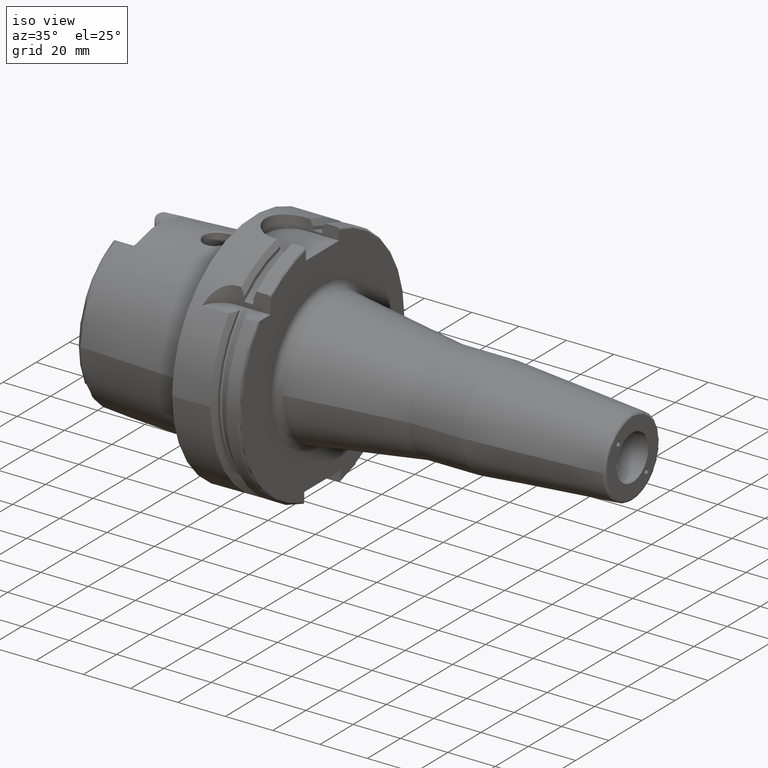
[diagram: clean part render]
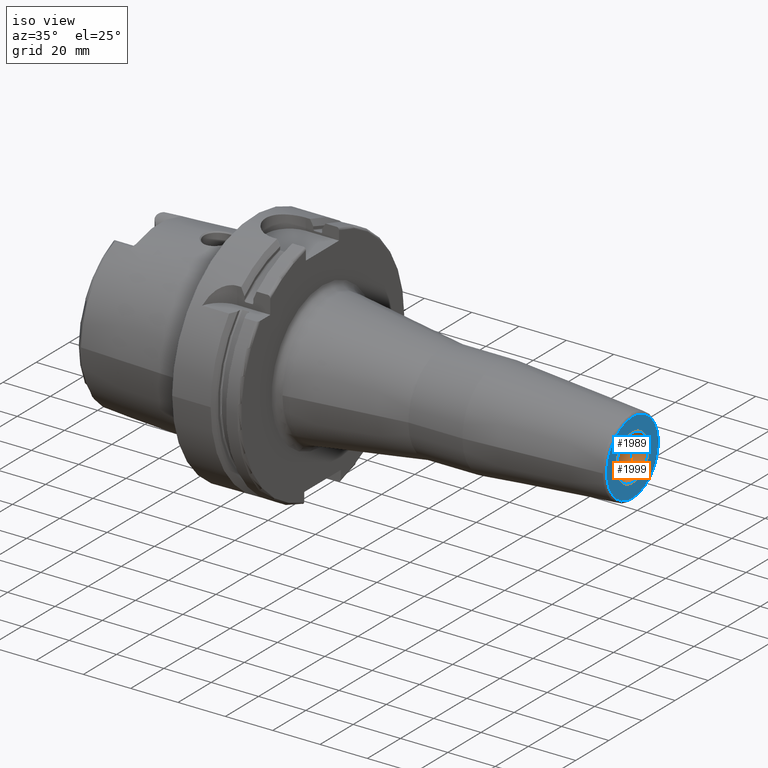
[diagram: same view with the hole feature highlighted: cylindrical wall and planar end face, labeled with their STEP entity ids]
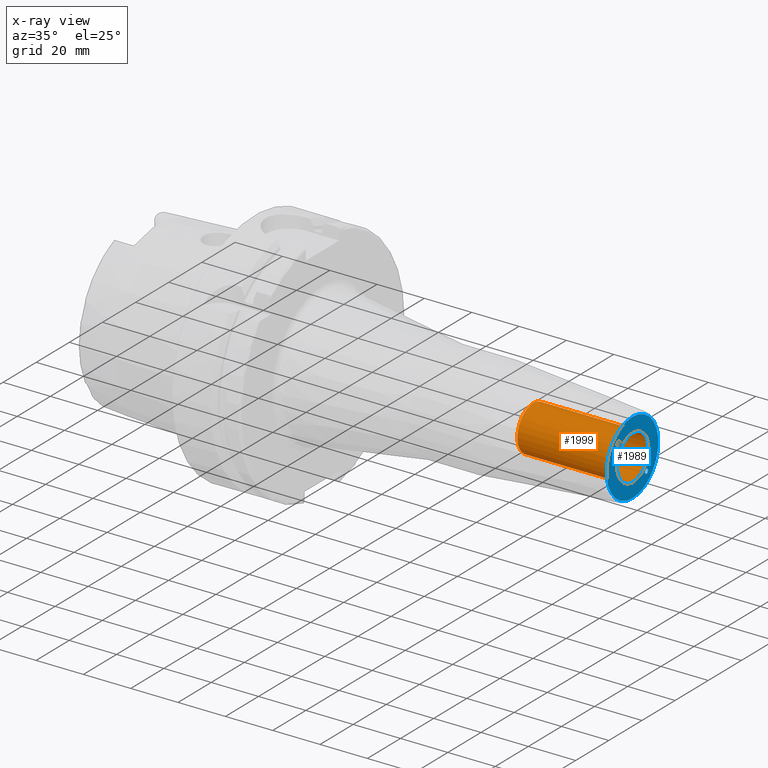
[diagram: x-ray of the same camera — body ghosted, the hole faces saturated]
A machine part, iso view. The highlighted faces form one hole feature of diameter 19.05 mm: the cylindrical wall (entity #1999, orange) and its adjacent planar end face (entity #1989, blue) — they share a circular edge in the B-rep.
The next image is the same camera in x-ray (body ghosted, the hole faces saturated) — the bore reads through the body.
Wall:
#177=CYLINDRICAL_SURFACE('',#2167,9.52499999999999);
#224=FACE_OUTER_BOUND('',#349,.T.);
#349=EDGE_LOOP('',(#1405,#1406,#1407,#1408));
#480=LINE('',#3109,#588);
#588=VECTOR('',#2490,9.52499999999999);
#684=CIRCLE('',#2142,9.525);
#700=CIRCLE('',#2168,9.52499999999999);
#818=VERTEX_POINT('',#3045);
#841=VERTEX_POINT('',#3108);
#1028=EDGE_CURVE('',#818,#818,#684,.T.);
#1058=EDGE_CURVE('',#818,#841,#480,.T.);
#1059=EDGE_CURVE('',#841,#841,#700,.T.);
#1405=ORIENTED_EDGE('',*,*,#1028,.T.);
#1406=ORIENTED_EDGE('',*,*,#1058,.T.);
#1407=ORIENTED_EDGE('',*,*,#1059,.F.);
#1408=ORIENTED_EDGE('',*,*,#1058,.F.);
#1999=ADVANCED_FACE('',(#224),#177,.F.);
#2142=AXIS2_PLACEMENT_3D('',#3046,#2424,#2425);
#2167=AXIS2_PLACEMENT_3D('',#3107,#2488,#2489);
#2168=AXIS2_PLACEMENT_3D('',#3110,#2491,#2492);
#2424=DIRECTION('center_axis',(1.,0.,0.));
#2425=DIRECTION('ref_axis',(0.,0.,-1.));
#2488=DIRECTION('center_axis',(1.,0.,0.));
#2489=DIRECTION('ref_axis',(0.,1.,0.));
#2490=DIRECTION('',(-1.,0.,0.));
#2491=DIRECTION('center_axis',(1.,0.,0.));
#2492=DIRECTION('ref_axis',(0.,0.,-1.));
#3045=CARTESIAN_POINT('',(160.,-9.52499999999999,-1.16647607618785E-15));
#3046=CARTESIAN_POINT('Origin',(160.,0.,0.));
#3107=CARTESIAN_POINT('Origin',(139.,0.,0.));
#3108=CARTESIAN_POINT('',(118.,-9.52499999999999,-1.16647607618785E-15));
#3109=CARTESIAN_POINT('',(139.,-9.52499999999999,-1.16647607618785E-15));
#3110=CARTESIAN_POINT('Origin',(118.,0.,0.));
End face:
#85=FACE_BOUND('',#335,.T.);
#86=FACE_BOUND('',#336,.T.);
#87=FACE_BOUND('',#337,.T.);
#98=PLANE('',#2141);
#161=ELLIPSE('',#2129,1.00060954429882,1.);
#162=ELLIPSE('',#2133,1.00060954429882,1.);
#214=FACE_OUTER_BOUND('',#334,.T.);
#334=EDGE_LOOP('',(#1355));
#335=EDGE_LOOP('',(#1356));
#336=EDGE_LOOP('',(#1357));
#337=EDGE_LOOP('',(#1358));
#679=CIRCLE('',#2135,15.5756095083418);
#684=CIRCLE('',#2142,9.525);
#810=VERTEX_POINT('',#3020);
#813=VERTEX_POINT('',#3029);
#814=VERTEX_POINT('',#3033);
#818=VERTEX_POINT('',#3045);
#1016=EDGE_CURVE('',#810,#810,#161,.T.);
#1020=EDGE_CURVE('',#813,#813,#162,.T.);
#1022=EDGE_CURVE('',#814,#814,#679,.T.);
#1028=EDGE_CURVE('',#818,#818,#684,.T.);
#1355=ORIENTED_EDGE('',*,*,#1022,.F.);
#1356=ORIENTED_EDGE('',*,*,#1016,.T.);
#1357=ORIENTED_EDGE('',*,*,#1020,.T.);
#1358=ORIENTED_EDGE('',*,*,#1028,.F.);
#1989=ADVANCED_FACE('',(#214,#85,#86,#87),#98,.T.);
#2129=AXIS2_PLACEMENT_3D('',#3021,#2394,#2395);
#2133=AXIS2_PLACEMENT_3D('',#3030,#2404,#2405);
#2135=AXIS2_PLACEMENT_3D('',#3034,#2409,#2410);
#2141=AXIS2_PLACEMENT_3D('',#3044,#2422,#2423);
#2142=AXIS2_PLACEMENT_3D('',#3046,#2424,#2425);
#2394=DIRECTION('center_axis',(-1.,0.,0.));
#2395=DIRECTION('ref_axis',(0.,-0.707106781186578,0.707106781186517));
#2404=DIRECTION('center_axis',(-1.,0.,0.));
#2405=DIRECTION('ref_axis',(0.,0.707106781186578,-0.707106781186517));
#2409=DIRECTION('center_axis',(-1.,0.,0.));
#2410=DIRECTION('ref_axis',(0.,-1.,1.83697019872103E-16));
#2422=DIRECTION('center_axis',(1.,0.,0.));
#2423=DIRECTION('ref_axis',(0.,0.,-1.));
#2424=DIRECTION('center_axis',(1.,0.,0.));
#2425=DIRECTION('ref_axis',(0.,0.,-1.));
#3020=CARTESIAN_POINT('',(160.,-7.48497655566028,8.48467182996804));
#3021=CARTESIAN_POINT('Origin',(160.,-8.48528137423857,8.48528137423857));
#3029=CARTESIAN_POINT('',(160.,7.48497655566028,-8.48467182996804));
#3030=CARTESIAN_POINT('Origin',(160.,8.48528137423857,-8.48528137423857));
#3033=CARTESIAN_POINT('',(160.,-1.90746203291599E-15,15.5756095083418));
#3034=CARTESIAN_POINT('Origin',(160.,0.,0.));
#3044=CARTESIAN_POINT('Origin',(160.,9.525,0.));
#3045=CARTESIAN_POINT('',(160.,-9.52499999999999,-1.16647607618785E-15));
#3046=CARTESIAN_POINT('Origin',(160.,0.,0.));